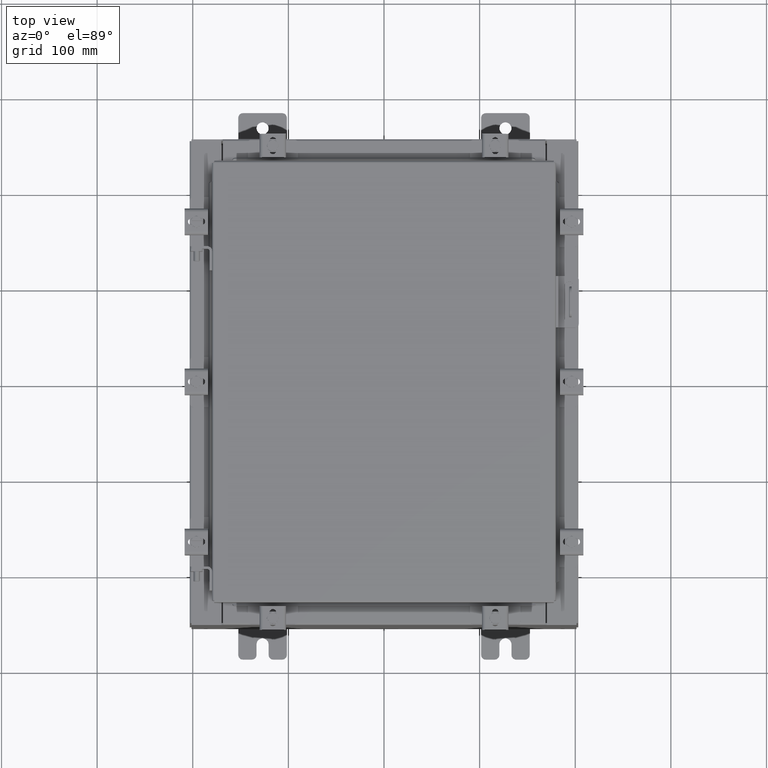
[diagram: clean part render]
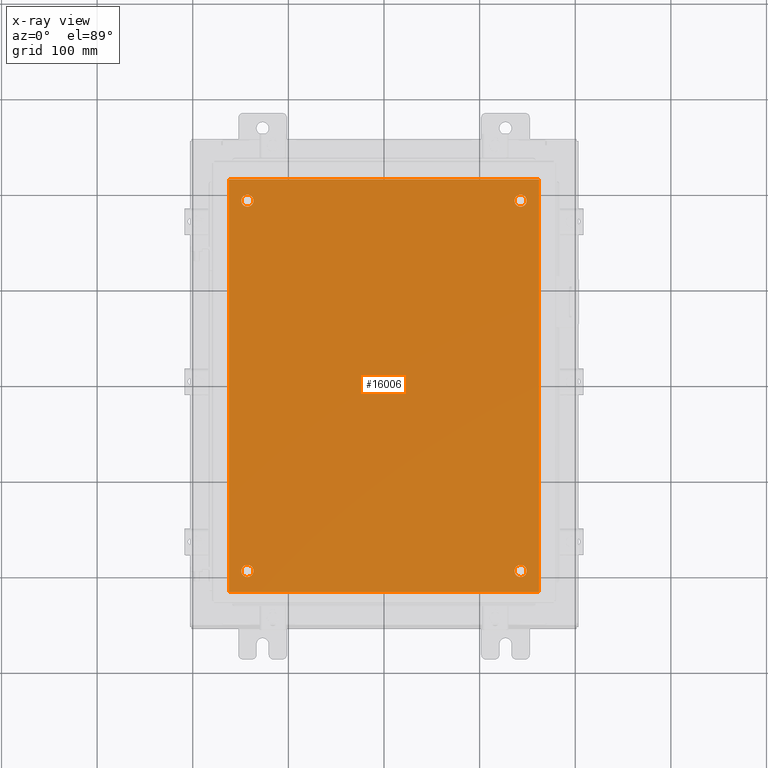
[diagram: x-ray — body ghosted, one internal face saturated and labeled with its STEP entity id]
A machine part, top view, then the same camera in x-ray: the body is ghosted and one INTERNAL B-rep face — a face not visible from any outside direction — is saturated and labeled: STEP entity #16006.
In plain terms, the highlighted planar face has unit normal (0, 0, -1).
Its self-contained STEP definition (entity closure, byte-faithful):
#36 = VERTEX_POINT ( 'NONE', #4208 ) ;
#380 = VERTEX_POINT ( 'NONE', #11655 ) ;
#502 = DIRECTION ( 'NONE',  ( -0.0000000000000000000, -0.0000000000000000000, 1.000000000000000000 ) ) ;
#815 = EDGE_CURVE ( 'NONE', #6281, #17274, #21062, .T. ) ;
#946 = DIRECTION ( 'NONE',  ( -1.000000000000000000, 0.0000000000000000000, 0.0000000000000000000 ) ) ;
#970 = CARTESIAN_POINT ( 'NONE',  ( -5.375000000000000900, -7.625000000000001800, -0.1040000000000000400 ) ) ;
#1051 = AXIS2_PLACEMENT_3D ( 'NONE', #1167, #502, #4084 ) ;
#1167 = CARTESIAN_POINT ( 'NONE',  ( -5.625000000000000000, 7.625000000000001800, -0.1040000000000000400 ) ) ;
#1207 = FACE_BOUND ( 'NONE', #9560, .T. ) ;
#1435 = VERTEX_POINT ( 'NONE', #9150 ) ;
#1443 = ORIENTED_EDGE ( 'NONE', *, *, #1849, .F. ) ;
#1503 = ORIENTED_EDGE ( 'NONE', *, *, #13049, .T. ) ;
#1547 = EDGE_CURVE ( 'NONE', #8497, #21030, #22376, .T. ) ;
#1688 = AXIS2_PLACEMENT_3D ( 'NONE', #7841, #9658, #21823 ) ;
#1699 = DIRECTION ( 'NONE',  ( -1.000000000000000000, 0.0000000000000000000, 0.0000000000000000000 ) ) ;
#1755 = CIRCLE ( 'NONE', #13798, 0.2499999999999998100 ) ;
#1846 = VECTOR ( 'NONE', #3759, 39.37007874015748100 ) ;
#1849 = EDGE_CURVE ( 'NONE', #12054, #36, #18038, .T. ) ;
#1924 = ORIENTED_EDGE ( 'NONE', *, *, #5091, .F. ) ;
#1985 = ORIENTED_EDGE ( 'NONE', *, *, #15988, .T. ) ;
#2004 = CIRCLE ( 'NONE', #12106, 0.2499999999999987000 ) ;
#3759 = DIRECTION ( 'NONE',  ( -1.000000000000000000, -0.0000000000000000000, -0.0000000000000000000 ) ) ;
#3820 = AXIS2_PLACEMENT_3D ( 'NONE', #20183, #9755, #21933 ) ;
#3847 = CARTESIAN_POINT ( 'NONE',  ( 6.383000000000000900, -8.499999999999998200, -0.1040000000000000400 ) ) ;
#4084 = DIRECTION ( 'NONE',  ( -1.000000000000000000, 0.0000000000000000000, 0.0000000000000000000 ) ) ;
#4208 = CARTESIAN_POINT ( 'NONE',  ( 6.383000000000000900, 8.500000000000000000, -0.1040000000000000400 ) ) ;
#4336 = EDGE_CURVE ( 'NONE', #7088, #1435, #17929, .T. ) ;
#4777 = FACE_OUTER_BOUND ( 'NONE', #13617, .T. ) ;
#5091 = EDGE_CURVE ( 'NONE', #36, #5567, #15740, .T. ) ;
#5316 = DIRECTION ( 'NONE',  ( -0.0000000000000000000, -0.0000000000000000000, 1.000000000000000000 ) ) ;
#5537 = DIRECTION ( 'NONE',  ( -0.0000000000000000000, -0.0000000000000000000, 1.000000000000000000 ) ) ;
#5567 = VERTEX_POINT ( 'NONE', #15742 ) ;
#5702 = ORIENTED_EDGE ( 'NONE', *, *, #20812, .T. ) ;
#5857 = FACE_BOUND ( 'NONE', #12819, .T. ) ;
#6281 = VERTEX_POINT ( 'NONE', #8520 ) ;
#6956 = AXIS2_PLACEMENT_3D ( 'NONE', #15721, #5316, #17447 ) ;
#6966 = CARTESIAN_POINT ( 'NONE',  ( -5.875000000000000000, -7.625000000000001800, -0.1040000000000000400 ) ) ;
#7088 = VERTEX_POINT ( 'NONE', #21335 ) ;
#7793 = CARTESIAN_POINT ( 'NONE',  ( 5.874999999999999100, 7.625000000000002700, -0.1040000000000000400 ) ) ;
#7841 = CARTESIAN_POINT ( 'NONE',  ( 0.0000000000000000000, 0.0000000000000000000, -0.1040000000000000400 ) ) ;
#8096 = DIRECTION ( 'NONE',  ( 0.0000000000000000000, 1.000000000000000000, 0.0000000000000000000 ) ) ;
#8156 = LINE ( 'NONE', #20765, #16872 ) ;
#8497 = VERTEX_POINT ( 'NONE', #7793 ) ;
#8520 = CARTESIAN_POINT ( 'NONE',  ( -5.875000000000000000, 7.625000000000001800, -0.1040000000000000400 ) ) ;
#8669 = CARTESIAN_POINT ( 'NONE',  ( -6.499999999999998200, -8.499999999999998200, -0.1040000000000000400 ) ) ;
#9150 = CARTESIAN_POINT ( 'NONE',  ( 5.375000000000006200, -7.625000000000000900, -0.1040000000000000400 ) ) ;
#9156 = EDGE_CURVE ( 'NONE', #1435, #7088, #2004, .T. ) ;
#9368 = FACE_BOUND ( 'NONE', #16471, .T. ) ;
#9392 = ORIENTED_EDGE ( 'NONE', *, *, #9156, .T. ) ;
#9477 = DIRECTION ( 'NONE',  ( -0.0000000000000000000, -0.0000000000000000000, 1.000000000000000000 ) ) ;
#9560 = EDGE_LOOP ( 'NONE', ( #16086, #22301 ) ) ;
#9658 = DIRECTION ( 'NONE',  ( 0.0000000000000000000, 0.0000000000000000000, -1.000000000000000000 ) ) ;
#9755 = DIRECTION ( 'NONE',  ( -0.0000000000000000000, -0.0000000000000000000, 1.000000000000000000 ) ) ;
#9830 = EDGE_CURVE ( 'NONE', #21030, #8497, #13137, .T. ) ;
#10914 = EDGE_LOOP ( 'NONE', ( #12578, #9392 ) ) ;
#11199 = CARTESIAN_POINT ( 'NONE',  ( 5.375000000000001800, 7.625000000000002700, -0.1040000000000000400 ) ) ;
#11340 = DIRECTION ( 'NONE',  ( -0.0000000000000000000, -0.0000000000000000000, 1.000000000000000000 ) ) ;
#11655 = CARTESIAN_POINT ( 'NONE',  ( -6.382999999999998200, -8.499999999999998200, -0.1039999999999997600 ) ) ;
#11914 = CIRCLE ( 'NONE', #18612, 0.2499999999999998100 ) ;
#12054 = VERTEX_POINT ( 'NONE', #3847 ) ;
#12106 = AXIS2_PLACEMENT_3D ( 'NONE', #19909, #9477, #21669 ) ;
#12136 = DIRECTION ( 'NONE',  ( -0.0000000000000000000, -0.0000000000000000000, 1.000000000000000000 ) ) ;
#12417 = CARTESIAN_POINT ( 'NONE',  ( -6.499999999999998200, 8.500000000000000000, -0.1040000000000000400 ) ) ;
#12578 = ORIENTED_EDGE ( 'NONE', *, *, #4336, .T. ) ;
#12586 = ORIENTED_EDGE ( 'NONE', *, *, #21371, .F. ) ;
#12819 = EDGE_LOOP ( 'NONE', ( #5702, #1503 ) ) ;
#13049 = EDGE_CURVE ( 'NONE', #20712, #15327, #16102, .T. ) ;
#13137 = CIRCLE ( 'NONE', #3820, 0.2499999999999987000 ) ;
#13343 = CARTESIAN_POINT ( 'NONE',  ( 6.383000000000002700, -8.499999999999998200, -0.1039999999999997600 ) ) ;
#13617 = EDGE_LOOP ( 'NONE', ( #12586, #19935, #1924, #1443 ) ) ;
#13798 = AXIS2_PLACEMENT_3D ( 'NONE', #21746, #11340, #946 ) ;
#14002 = FACE_BOUND ( 'NONE', #10914, .T. ) ;
#14142 = ORIENTED_EDGE ( 'NONE', *, *, #815, .T. ) ;
#14374 = EDGE_CURVE ( 'NONE', #5567, #380, #8156, .T. ) ;
#14613 = CARTESIAN_POINT ( 'NONE',  ( 5.625000000000000000, 7.625000000000002700, -0.1040000000000000400 ) ) ;
#14685 = DIRECTION ( 'NONE',  ( -0.0000000000000000000, -0.0000000000000000000, 1.000000000000000000 ) ) ;
#14769 = DIRECTION ( 'NONE',  ( -1.000000000000000000, 0.0000000000000000000, 0.0000000000000000000 ) ) ;
#15193 = LINE ( 'NONE', #8669, #19268 ) ;
#15327 = VERTEX_POINT ( 'NONE', #970 ) ;
#15721 = CARTESIAN_POINT ( 'NONE',  ( 5.625000000000004400, -7.625000000000000900, -0.1040000000000000400 ) ) ;
#15740 = LINE ( 'NONE', #12417, #1846 ) ;
#15742 = CARTESIAN_POINT ( 'NONE',  ( -6.382999999999998200, 8.500000000000000000, -0.1039999999999997600 ) ) ;
#15957 = CARTESIAN_POINT ( 'NONE',  ( -5.625000000000000000, -7.625000000000001800, -0.1040000000000000400 ) ) ;
#15988 = EDGE_CURVE ( 'NONE', #17274, #6281, #1755, .T. ) ;
#16006 = ADVANCED_FACE ( 'NONE', ( #5857, #14002, #1207, #9368, #4777 ), #16599, .T. ) ;
#16086 = ORIENTED_EDGE ( 'NONE', *, *, #1547, .T. ) ;
#16102 = CIRCLE ( 'NONE', #16963, 0.2499999999999998100 ) ;
#16471 = EDGE_LOOP ( 'NONE', ( #1985, #14142 ) ) ;
#16599 = PLANE ( 'NONE',  #1688 ) ;
#16872 = VECTOR ( 'NONE', #22488, 39.37007874015748100 ) ;
#16963 = AXIS2_PLACEMENT_3D ( 'NONE', #21963, #12136, #1699 ) ;
#17165 = CARTESIAN_POINT ( 'NONE',  ( -5.375000000000000900, 7.625000000000001800, -0.1040000000000000400 ) ) ;
#17274 = VERTEX_POINT ( 'NONE', #17165 ) ;
#17447 = DIRECTION ( 'NONE',  ( -1.000000000000000000, 0.0000000000000000000, 0.0000000000000000000 ) ) ;
#17487 = VECTOR ( 'NONE', #8096, 39.37007874015748100 ) ;
#17679 = DIRECTION ( 'NONE',  ( -1.000000000000000000, 0.0000000000000000000, 0.0000000000000000000 ) ) ;
#17929 = CIRCLE ( 'NONE', #6956, 0.2499999999999987000 ) ;
#18038 = LINE ( 'NONE', #13343, #17487 ) ;
#18612 = AXIS2_PLACEMENT_3D ( 'NONE', #15957, #5537, #17679 ) ;
#19114 = DIRECTION ( 'NONE',  ( 1.000000000000000000, 0.0000000000000000000, 0.0000000000000000000 ) ) ;
#19268 = VECTOR ( 'NONE', #19114, 39.37007874015748100 ) ;
#19909 = CARTESIAN_POINT ( 'NONE',  ( 5.625000000000004400, -7.625000000000000900, -0.1040000000000000400 ) ) ;
#19935 = ORIENTED_EDGE ( 'NONE', *, *, #14374, .F. ) ;
#20183 = CARTESIAN_POINT ( 'NONE',  ( 5.625000000000000000, 7.625000000000002700, -0.1040000000000000400 ) ) ;
#20712 = VERTEX_POINT ( 'NONE', #6966 ) ;
#20765 = CARTESIAN_POINT ( 'NONE',  ( -6.382999999999998200, 8.500000000000000000, -0.1039999999999997600 ) ) ;
#20812 = EDGE_CURVE ( 'NONE', #15327, #20712, #11914, .T. ) ;
#21030 = VERTEX_POINT ( 'NONE', #11199 ) ;
#21062 = CIRCLE ( 'NONE', #1051, 0.2499999999999998100 ) ;
#21335 = CARTESIAN_POINT ( 'NONE',  ( 5.875000000000003600, -7.625000000000000900, -0.1040000000000000400 ) ) ;
#21371 = EDGE_CURVE ( 'NONE', #380, #12054, #15193, .T. ) ;
#21669 = DIRECTION ( 'NONE',  ( -1.000000000000000000, 0.0000000000000000000, 0.0000000000000000000 ) ) ;
#21746 = CARTESIAN_POINT ( 'NONE',  ( -5.625000000000000000, 7.625000000000001800, -0.1040000000000000400 ) ) ;
#21761 = AXIS2_PLACEMENT_3D ( 'NONE', #14613, #14685, #14769 ) ;
#21823 = DIRECTION ( 'NONE',  ( -1.000000000000000000, 0.0000000000000000000, -0.0000000000000000000 ) ) ;
#21933 = DIRECTION ( 'NONE',  ( -1.000000000000000000, 0.0000000000000000000, 0.0000000000000000000 ) ) ;
#21963 = CARTESIAN_POINT ( 'NONE',  ( -5.625000000000000000, -7.625000000000001800, -0.1040000000000000400 ) ) ;
#22301 = ORIENTED_EDGE ( 'NONE', *, *, #9830, .T. ) ;
#22376 = CIRCLE ( 'NONE', #21761, 0.2499999999999987000 ) ;
#22488 = DIRECTION ( 'NONE',  ( 0.0000000000000000000, -1.000000000000000000, 0.0000000000000000000 ) ) ;